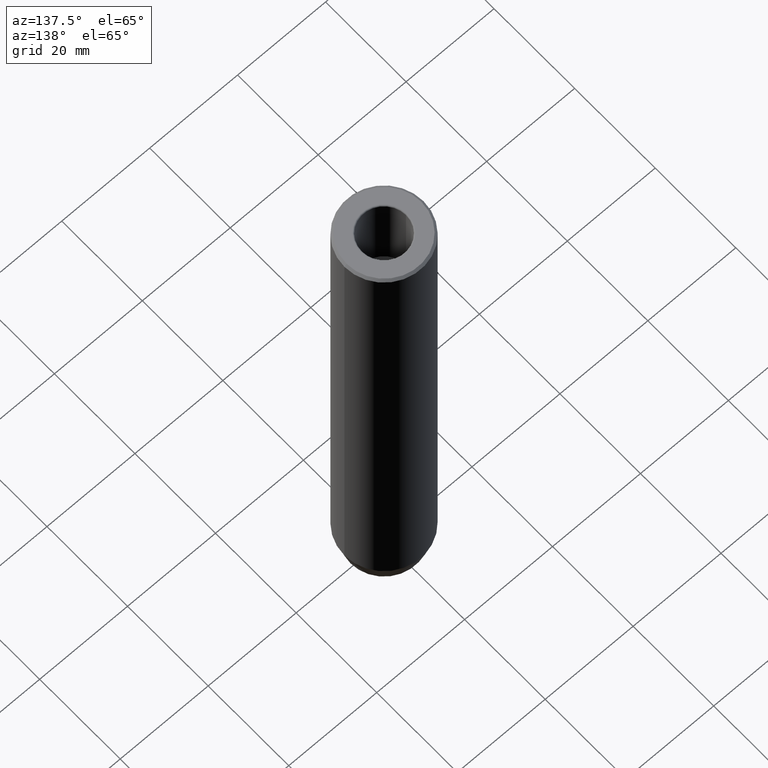
[diagram: clean part render]
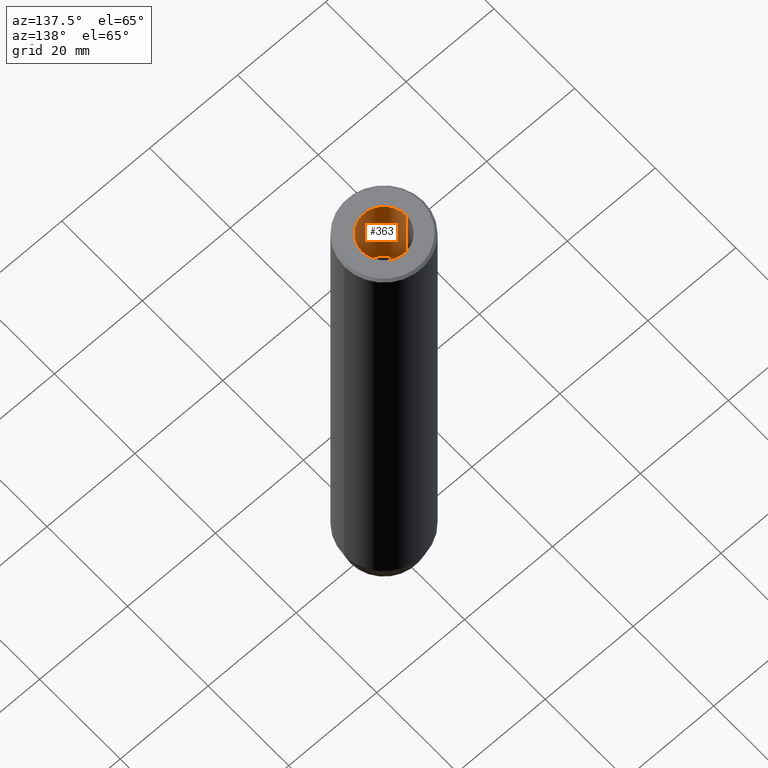
[diagram: same view with one face highlighted and labeled with its STEP entity id]
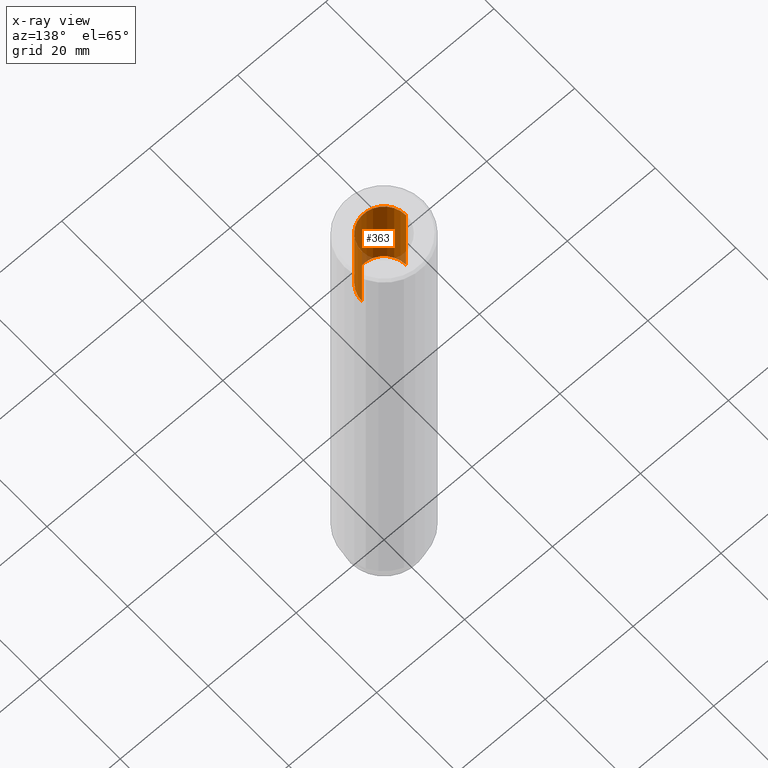
[diagram: x-ray of the same camera — body ghosted, the highlighted face saturated]
A machine part, auxiliary view. The second image highlights one B-rep face of the part: STEP entity #363.
The next image is the same camera in x-ray: the body ghosted, the highlighted face saturated — about 5% of this face is hidden behind the body in this view.
In plain terms, the highlighted cylindrical surface (edge-blend (fillet) strip) has radius 5 mm, axis along (-0, -0, 1).
Its self-contained STEP definition (entity closure, byte-faithful):
#6 = VECTOR ( 'NONE', #597, 1000.000000000000000 ) ;
#17 = CIRCLE ( 'NONE', #275, 4.999999999999997335 ) ;
#49 = CARTESIAN_POINT ( 'NONE',  ( 0.000000000000000000, 0.000000000000000000, 0.000000000000000000 ) ) ;
#72 = DIRECTION ( 'NONE',  ( -0.000000000000000000, -0.000000000000000000, 1.000000000000000000 ) ) ;
#75 = AXIS2_PLACEMENT_3D ( 'NONE', #534, #87, #508 ) ;
#87 = DIRECTION ( 'NONE',  ( -0.000000000000000000, -0.000000000000000000, 1.000000000000000000 ) ) ;
#90 = DIRECTION ( 'NONE',  ( -0.000000000000000000, -0.000000000000000000, 1.000000000000000000 ) ) ;
#100 = VERTEX_POINT ( 'NONE', #361 ) ;
#121 = CARTESIAN_POINT ( 'NONE',  ( 4.999999999999997335, 0.000000000000000000, 0.000000000000000000 ) ) ;
#125 = CIRCLE ( 'NONE', #75, 4.999999999999995559 ) ;
#168 = EDGE_CURVE ( 'NONE', #288, #220, #455, .T. ) ;
#183 = DIRECTION ( 'NONE',  ( 1.000000000000000000, 0.000000000000000000, 0.000000000000000000 ) ) ;
#220 = VERTEX_POINT ( 'NONE', #568 ) ;
#248 = CYLINDRICAL_SURFACE ( 'NONE', #413, 4.999999999999997335 ) ;
#257 = CARTESIAN_POINT ( 'NONE',  ( -4.999999999999997335, 6.123233995736763324E-16, -0.2999999999999999889 ) ) ;
#260 = ORIENTED_EDGE ( 'NONE', *, *, #456, .F. ) ;
#265 = LINE ( 'NONE', #407, #6 ) ;
#274 = DIRECTION ( 'NONE',  ( 1.000000000000000000, 0.000000000000000000, 0.000000000000000000 ) ) ;
#275 = AXIS2_PLACEMENT_3D ( 'NONE', #426, #72, #274 ) ;
#288 = VERTEX_POINT ( 'NONE', #435 ) ;
#297 = FACE_OUTER_BOUND ( 'NONE', #301, .T. ) ;
#301 = EDGE_LOOP ( 'NONE', ( #260, #544, #352, #616 ) ) ;
#352 = ORIENTED_EDGE ( 'NONE', *, *, #629, .T. ) ;
#361 = CARTESIAN_POINT ( 'NONE',  ( -4.999999999999995559, 6.123233995736761352E-16, -20.00000000000000000 ) ) ;
#363 = ADVANCED_FACE ( 'NONE', ( #297 ), #248, .F. ) ;
#407 = CARTESIAN_POINT ( 'NONE',  ( -4.999999999999997335, 6.123233995736763324E-16, 0.000000000000000000 ) ) ;
#413 = AXIS2_PLACEMENT_3D ( 'NONE', #49, #90, #183 ) ;
#426 = CARTESIAN_POINT ( 'NONE',  ( 0.000000000000000000, 0.000000000000000000, -0.2999999999999999889 ) ) ;
#435 = CARTESIAN_POINT ( 'NONE',  ( 4.999999999999995559, 0.000000000000000000, -20.00000000000000000 ) ) ;
#455 = LINE ( 'NONE', #121, #495 ) ;
#456 = EDGE_CURVE ( 'NONE', #100, #288, #125, .T. ) ;
#495 = VECTOR ( 'NONE', #518, 1000.000000000000000 ) ;
#508 = DIRECTION ( 'NONE',  ( 1.000000000000000000, 0.000000000000000000, 0.000000000000000000 ) ) ;
#518 = DIRECTION ( 'NONE',  ( -0.000000000000000000, -0.000000000000000000, 1.000000000000000000 ) ) ;
#534 = CARTESIAN_POINT ( 'NONE',  ( 0.000000000000000000, 0.000000000000000000, -20.00000000000000000 ) ) ;
#544 = ORIENTED_EDGE ( 'NONE', *, *, #567, .T. ) ;
#546 = VERTEX_POINT ( 'NONE', #257 ) ;
#567 = EDGE_CURVE ( 'NONE', #100, #546, #265, .T. ) ;
#568 = CARTESIAN_POINT ( 'NONE',  ( 4.999999999999997335, 0.000000000000000000, -0.2999999999999999889 ) ) ;
#597 = DIRECTION ( 'NONE',  ( -0.000000000000000000, -0.000000000000000000, 1.000000000000000000 ) ) ;
#616 = ORIENTED_EDGE ( 'NONE', *, *, #168, .F. ) ;
#629 = EDGE_CURVE ( 'NONE', #546, #220, #17, .T. ) ;